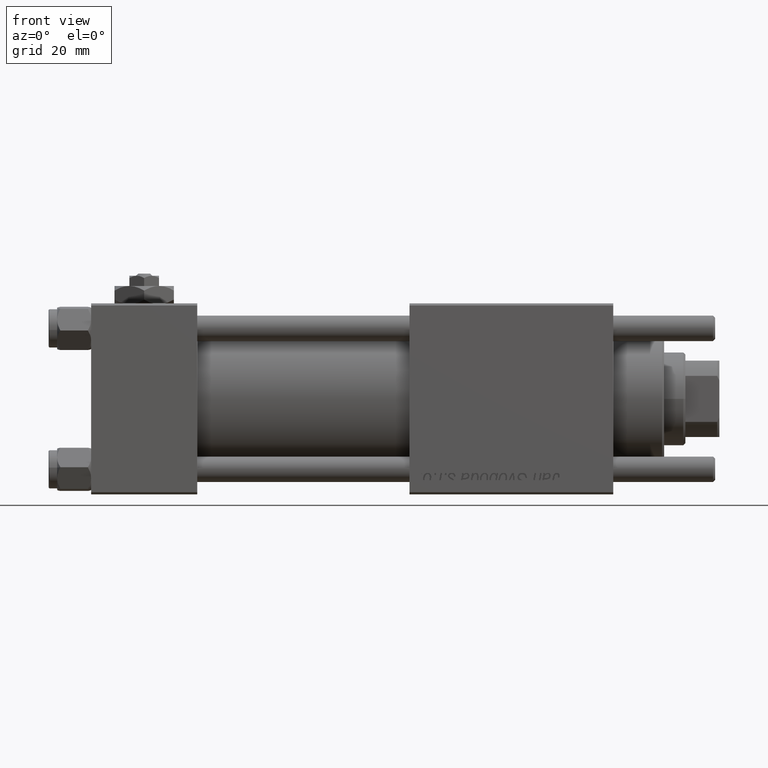
[diagram: clean part render]
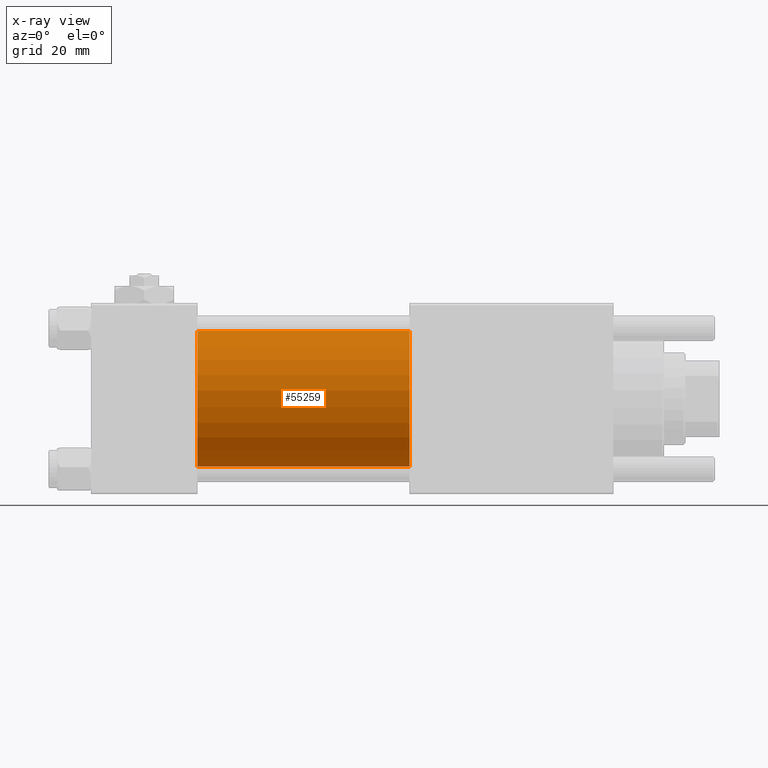
[diagram: x-ray — body ghosted, one internal face saturated and labeled with its STEP entity id]
A machine part, front view, then the same camera in x-ray: the body is ghosted and one INTERNAL B-rep face — a face not visible from any outside direction — is saturated and labeled: STEP entity #55259.
In plain terms, the highlighted cylindrical surface (partial cylindrical patch) has radius 16 mm, axis along (-1, -0, -0).
Its self-contained STEP definition (entity closure, byte-faithful):
#812 = CARTESIAN_POINT ( 'NONE',  ( 75.00000000000001421, -6.426503353294456087E-16, -16.00000000000000000 ) ) ;
#864 = DIRECTION ( 'NONE',  ( 1.000000000000000000, 0.000000000000000000, 0.000000000000000000 ) ) ;
#1952 = DIRECTION ( 'NONE',  ( 0.000000000000000000, 0.000000000000000000, 1.000000000000000000 ) ) ;
#3179 = CARTESIAN_POINT ( 'NONE',  ( 75.00000000000001421, -6.426503353294456087E-16, -16.00000000000000000 ) ) ;
#5871 = ORIENTED_EDGE ( 'NONE', *, *, #23315, .F. ) ;
#7275 = ORIENTED_EDGE ( 'NONE', *, *, #35115, .T. ) ;
#10540 = CARTESIAN_POINT ( 'NONE',  ( 75.00000000000001421, -2.602085213965210642E-15, 0.000000000000000000 ) ) ;
#12053 = CARTESIAN_POINT ( 'NONE',  ( 75.00000000000001421, -2.602085213965210642E-15, 16.00000000000000000 ) ) ;
#12926 = VECTOR ( 'NONE', #39270, 1000.000000000000000 ) ;
#13514 = CARTESIAN_POINT ( 'NONE',  ( 75.00000000000001421, -2.602085213965210642E-15, 16.00000000000000000 ) ) ;
#14188 = DIRECTION ( 'NONE',  ( 0.000000000000000000, 0.000000000000000000, -1.000000000000000000 ) ) ;
#15854 = CARTESIAN_POINT ( 'NONE',  ( 25.00000000000000000, -2.602085213965210642E-15, 16.00000000000000000 ) ) ;
#16203 = LINE ( 'NONE', #12053, #12926 ) ;
#17384 = ORIENTED_EDGE ( 'NONE', *, *, #22296, .F. ) ;
#20588 = CIRCLE ( 'NONE', #34742, 16.00000000000000000 ) ;
#22296 = EDGE_CURVE ( 'NONE', #24629, #40290, #20588, .T. ) ;
#23315 = EDGE_CURVE ( 'NONE', #32896, #24629, #16203, .T. ) ;
#24455 = CYLINDRICAL_SURFACE ( 'NONE', #50651, 16.00000000000000000 ) ;
#24629 = VERTEX_POINT ( 'NONE', #15854 ) ;
#25092 = VERTEX_POINT ( 'NONE', #3179 ) ;
#27099 = ORIENTED_EDGE ( 'NONE', *, *, #41740, .T. ) ;
#28634 = DIRECTION ( 'NONE',  ( -1.000000000000000000, -0.000000000000000000, -0.000000000000000000 ) ) ;
#31937 = CARTESIAN_POINT ( 'NONE',  ( 25.00000000000000000, -2.602085213965210642E-15, 0.000000000000000000 ) ) ;
#32896 = VERTEX_POINT ( 'NONE', #13514 ) ;
#34105 = CIRCLE ( 'NONE', #41659, 16.00000000000000000 ) ;
#34742 = AXIS2_PLACEMENT_3D ( 'NONE', #31937, #864, #14188 ) ;
#35115 = EDGE_CURVE ( 'NONE', #32896, #25092, #34105, .T. ) ;
#36122 = EDGE_LOOP ( 'NONE', ( #7275, #27099, #17384, #5871 ) ) ;
#39270 = DIRECTION ( 'NONE',  ( -1.000000000000000000, -0.000000000000000000, -0.000000000000000000 ) ) ;
#40290 = VERTEX_POINT ( 'NONE', #41108 ) ;
#41108 = CARTESIAN_POINT ( 'NONE',  ( 25.00000000000000000, -6.426503353294456087E-16, -16.00000000000000000 ) ) ;
#41659 = AXIS2_PLACEMENT_3D ( 'NONE', #51068, #56401, #51363 ) ;
#41740 = EDGE_CURVE ( 'NONE', #25092, #40290, #46995, .T. ) ;
#42514 = DIRECTION ( 'NONE',  ( -1.000000000000000000, -0.000000000000000000, -0.000000000000000000 ) ) ;
#46995 = LINE ( 'NONE', #812, #52148 ) ;
#50651 = AXIS2_PLACEMENT_3D ( 'NONE', #10540, #42514, #1952 ) ;
#51068 = CARTESIAN_POINT ( 'NONE',  ( 75.00000000000001421, -2.602085213965210642E-15, 0.000000000000000000 ) ) ;
#51097 = FACE_OUTER_BOUND ( 'NONE', #36122, .T. ) ;
#51363 = DIRECTION ( 'NONE',  ( 0.000000000000000000, 0.000000000000000000, -1.000000000000000000 ) ) ;
#52148 = VECTOR ( 'NONE', #28634, 1000.000000000000000 ) ;
#55259 = ADVANCED_FACE ( 'NONE', ( #51097 ), #24455, .F. ) ;
#56401 = DIRECTION ( 'NONE',  ( 1.000000000000000000, 0.000000000000000000, 0.000000000000000000 ) ) ;